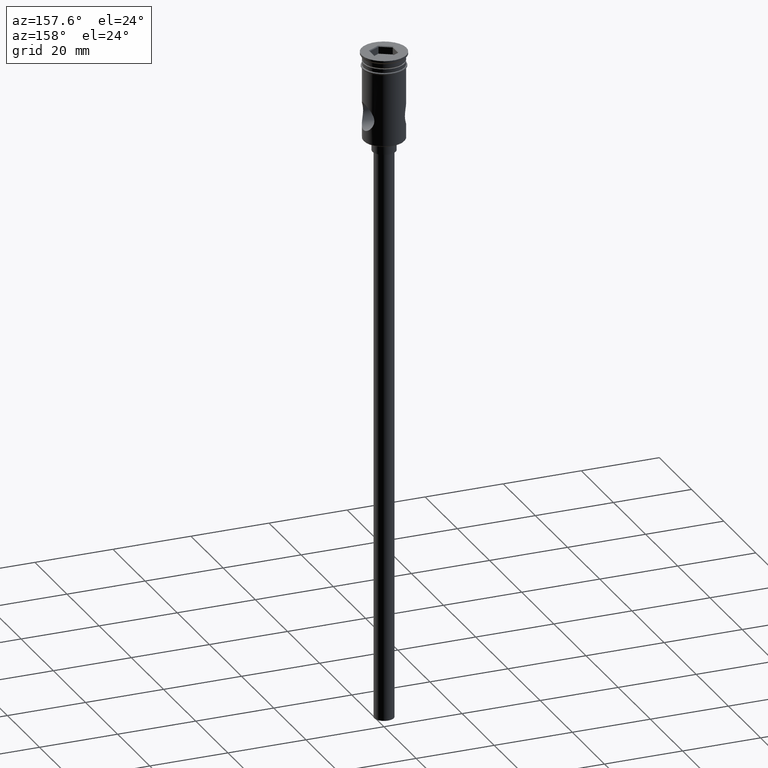
[diagram: clean part render]
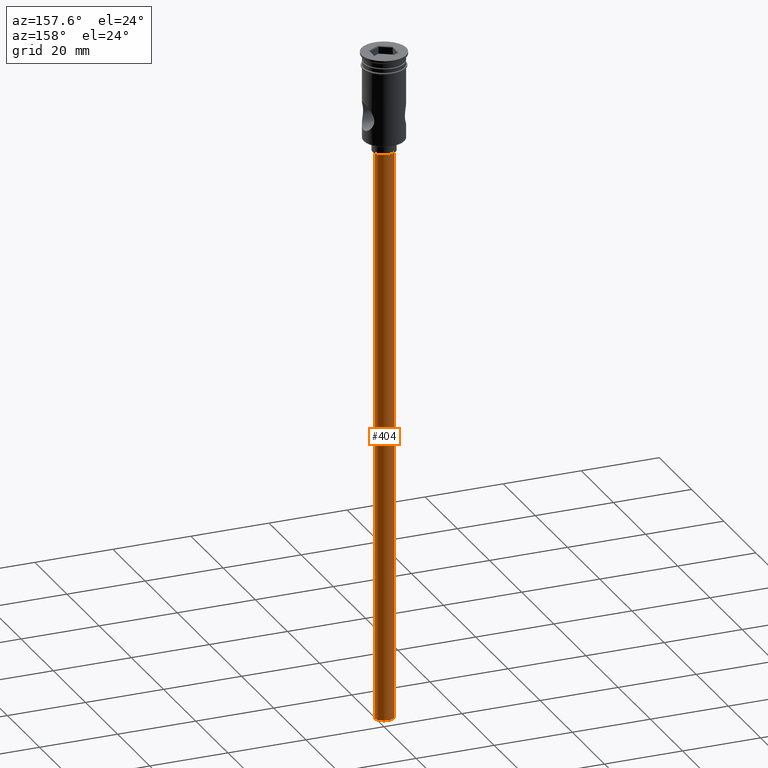
[diagram: same view with one face highlighted and labeled with its STEP entity id]
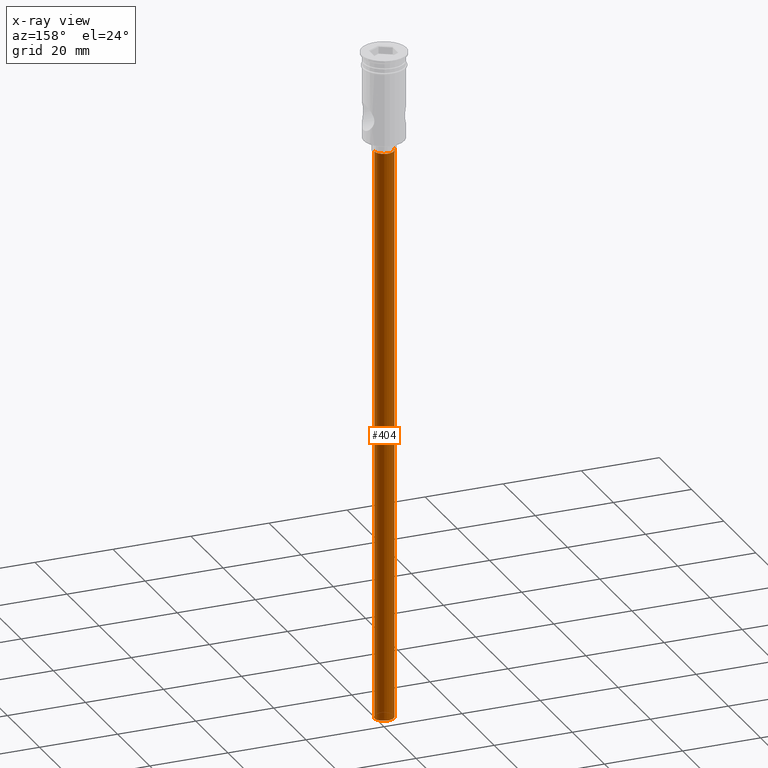
[diagram: x-ray of the same camera — body ghosted, the highlighted face saturated]
A machine part, auxiliary view. The second image highlights one B-rep face of the part: STEP entity #404.
The next image is the same camera in x-ray: the body ghosted, the highlighted face saturated — about 0% of this face is hidden behind the body in this view.
In plain terms, the highlighted cylindrical surface (edge-blend (fillet) strip) has radius 2.5 mm, axis along (-0, -0, 1).
Its self-contained STEP definition (entity closure, byte-faithful):
#50 = AXIS2_PLACEMENT_3D ( 'NONE', #1382, #251, #1265 ) ;
#146 = CARTESIAN_POINT ( 'NONE',  ( -2.500000000000000000, 3.061616997868383141E-16, -172.5000000000000000 ) ) ;
#184 = ORIENTED_EDGE ( 'NONE', *, *, #783, .T. ) ;
#199 = ORIENTED_EDGE ( 'NONE', *, *, #319, .T. ) ;
#205 = CARTESIAN_POINT ( 'NONE',  ( 2.500000000000000000, 0.000000000000000000, -172.5000000000000000 ) ) ;
#235 = CARTESIAN_POINT ( 'NONE',  ( -2.500000000000000000, 3.061616997868383141E-16, -25.50000000000000000 ) ) ;
#244 = DIRECTION ( 'NONE',  ( -0.000000000000000000, -0.000000000000000000, 1.000000000000000000 ) ) ;
#251 = DIRECTION ( 'NONE',  ( 0.000000000000000000, 0.000000000000000000, -1.000000000000000000 ) ) ;
#319 = EDGE_CURVE ( 'NONE', #580, #371, #1241, .T. ) ;
#320 = LINE ( 'NONE', #205, #1162 ) ;
#348 = LINE ( 'NONE', #896, #1142 ) ;
#371 = VERTEX_POINT ( 'NONE', #1367 ) ;
#401 = EDGE_LOOP ( 'NONE', ( #1316, #184, #199, #1144 ) ) ;
#404 = ADVANCED_FACE ( 'NONE', ( #512 ), #729, .T. ) ;
#495 = DIRECTION ( 'NONE',  ( -1.000000000000000000, 0.000000000000000000, 0.000000000000000000 ) ) ;
#502 = CIRCLE ( 'NONE', #719, 2.500000000000000000 ) ;
#512 = FACE_OUTER_BOUND ( 'NONE', #401, .T. ) ;
#580 = VERTEX_POINT ( 'NONE', #235 ) ;
#605 = CARTESIAN_POINT ( 'NONE',  ( 0.000000000000000000, 0.000000000000000000, -172.5000000000000000 ) ) ;
#610 = DIRECTION ( 'NONE',  ( 1.000000000000000000, 0.000000000000000000, 0.000000000000000000 ) ) ;
#719 = AXIS2_PLACEMENT_3D ( 'NONE', #605, #1036, #495 ) ;
#729 = CYLINDRICAL_SURFACE ( 'NONE', #937, 2.500000000000000000 ) ;
#783 = EDGE_CURVE ( 'NONE', #1290, #580, #348, .T. ) ;
#832 = DIRECTION ( 'NONE',  ( -0.000000000000000000, -0.000000000000000000, 1.000000000000000000 ) ) ;
#896 = CARTESIAN_POINT ( 'NONE',  ( -2.500000000000000000, 3.061616997868383141E-16, -172.5000000000000000 ) ) ;
#937 = AXIS2_PLACEMENT_3D ( 'NONE', #1399, #832, #610 ) ;
#977 = EDGE_CURVE ( 'NONE', #1290, #1137, #502, .T. ) ;
#985 = CARTESIAN_POINT ( 'NONE',  ( 2.500000000000000000, 0.000000000000000000, -172.5000000000000000 ) ) ;
#1036 = DIRECTION ( 'NONE',  ( 0.000000000000000000, 0.000000000000000000, -1.000000000000000000 ) ) ;
#1137 = VERTEX_POINT ( 'NONE', #985 ) ;
#1142 = VECTOR ( 'NONE', #244, 1000.000000000000000 ) ;
#1144 = ORIENTED_EDGE ( 'NONE', *, *, #1351, .F. ) ;
#1162 = VECTOR ( 'NONE', #1426, 1000.000000000000000 ) ;
#1241 = CIRCLE ( 'NONE', #50, 2.500000000000000000 ) ;
#1265 = DIRECTION ( 'NONE',  ( -1.000000000000000000, 0.000000000000000000, 0.000000000000000000 ) ) ;
#1290 = VERTEX_POINT ( 'NONE', #146 ) ;
#1316 = ORIENTED_EDGE ( 'NONE', *, *, #977, .F. ) ;
#1351 = EDGE_CURVE ( 'NONE', #1137, #371, #320, .T. ) ;
#1367 = CARTESIAN_POINT ( 'NONE',  ( 2.500000000000000000, 0.000000000000000000, -25.50000000000000000 ) ) ;
#1382 = CARTESIAN_POINT ( 'NONE',  ( 0.000000000000000000, 0.000000000000000000, -25.50000000000000000 ) ) ;
#1399 = CARTESIAN_POINT ( 'NONE',  ( 0.000000000000000000, 0.000000000000000000, -172.5000000000000000 ) ) ;
#1426 = DIRECTION ( 'NONE',  ( -0.000000000000000000, -0.000000000000000000, 1.000000000000000000 ) ) ;